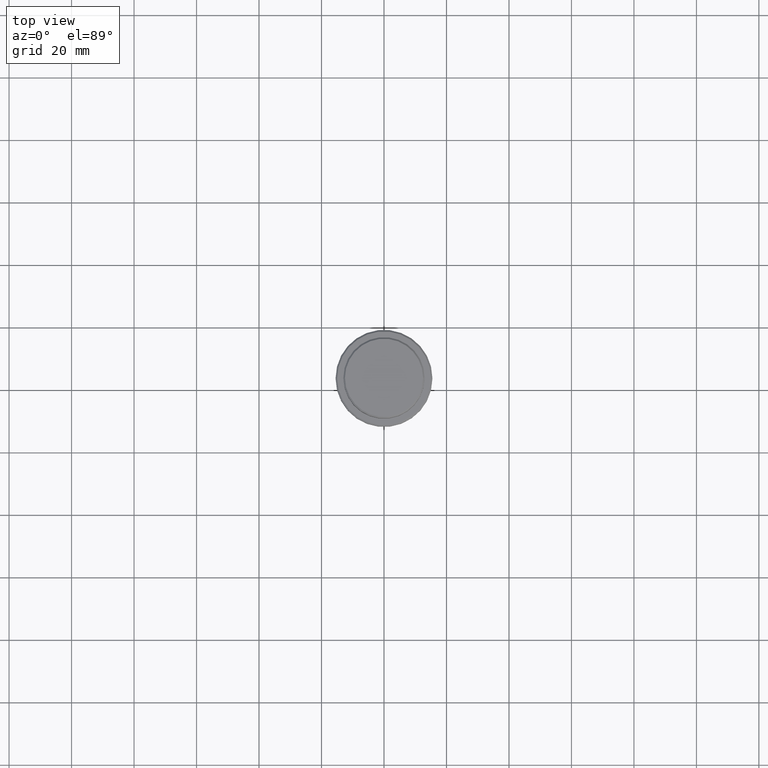
[diagram: clean part render]
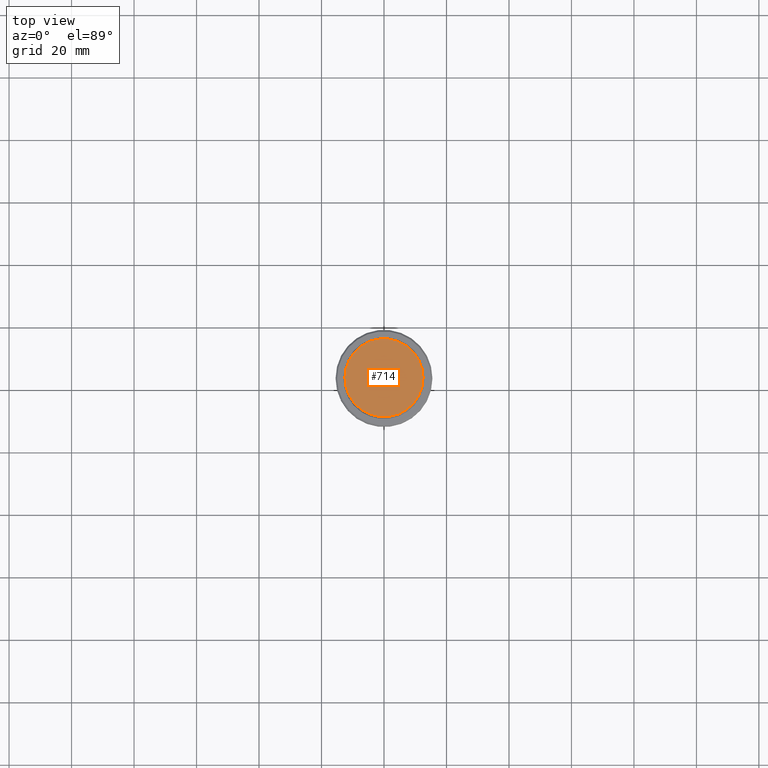
[diagram: same view with one face highlighted and labeled with its STEP entity id]
A machine part, top view. The second image highlights one B-rep face of the part: STEP entity #714.
In plain terms, the highlighted planar face has unit normal (0, -0, 1).
Its self-contained STEP definition (entity closure, byte-faithful):
#141 = DIRECTION ( 'NONE',  ( 1.000000000000000000, 0.000000000000000000, 0.000000000000000000 ) ) ;
#211 = DIRECTION ( 'NONE',  ( 0.000000000000000000, -0.000000000000000000, 1.000000000000000000 ) ) ;
#223 = CARTESIAN_POINT ( 'NONE',  ( 0.000000000000000000, 0.000000000000000000, 0.000000000000000000 ) ) ;
#254 = CARTESIAN_POINT ( 'NONE',  ( 0.000000000000000000, 0.000000000000000000, 0.000000000000000000 ) ) ;
#277 = EDGE_LOOP ( 'NONE', ( #793, #514 ) ) ;
#305 = PLANE ( 'NONE',  #337 ) ;
#337 = AXIS2_PLACEMENT_3D ( 'NONE', #223, #211, #639 ) ;
#404 = EDGE_CURVE ( 'NONE', #1282, #437, #922, .T. ) ;
#437 = VERTEX_POINT ( 'NONE', #680 ) ;
#514 = ORIENTED_EDGE ( 'NONE', *, *, #404, .T. ) ;
#527 = FACE_OUTER_BOUND ( 'NONE', #277, .T. ) ;
#639 = DIRECTION ( 'NONE',  ( 1.000000000000000000, 0.000000000000000000, 0.000000000000000000 ) ) ;
#680 = CARTESIAN_POINT ( 'NONE',  ( -12.50000000000006750, 0.000000000000000000, 0.000000000000000000 ) ) ;
#714 = ADVANCED_FACE ( 'NONE', ( #527 ), #305, .T. ) ;
#780 = DIRECTION ( 'NONE',  ( -0.000000000000000000, -0.000000000000000000, 1.000000000000000000 ) ) ;
#793 = ORIENTED_EDGE ( 'NONE', *, *, #909, .T. ) ;
#811 = AXIS2_PLACEMENT_3D ( 'NONE', #1358, #780, #141 ) ;
#868 = CARTESIAN_POINT ( 'NONE',  ( 12.50000000000006750, 1.561424668912879450E-15, 0.000000000000000000 ) ) ;
#909 = EDGE_CURVE ( 'NONE', #437, #1282, #1277, .T. ) ;
#922 = CIRCLE ( 'NONE', #1037, 12.50000000000006750 ) ;
#1037 = AXIS2_PLACEMENT_3D ( 'NONE', #254, #1215, #1113 ) ;
#1113 = DIRECTION ( 'NONE',  ( 1.000000000000000000, 0.000000000000000000, 0.000000000000000000 ) ) ;
#1215 = DIRECTION ( 'NONE',  ( -0.000000000000000000, -0.000000000000000000, 1.000000000000000000 ) ) ;
#1277 = CIRCLE ( 'NONE', #811, 12.50000000000006750 ) ;
#1282 = VERTEX_POINT ( 'NONE', #868 ) ;
#1358 = CARTESIAN_POINT ( 'NONE',  ( 0.000000000000000000, 0.000000000000000000, 0.000000000000000000 ) ) ;